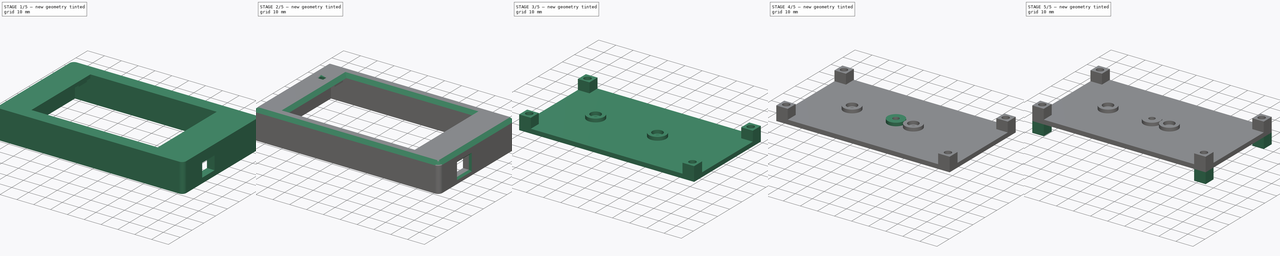
[diagram: build sequence overview — one tinted view per stage of 5, left to right]
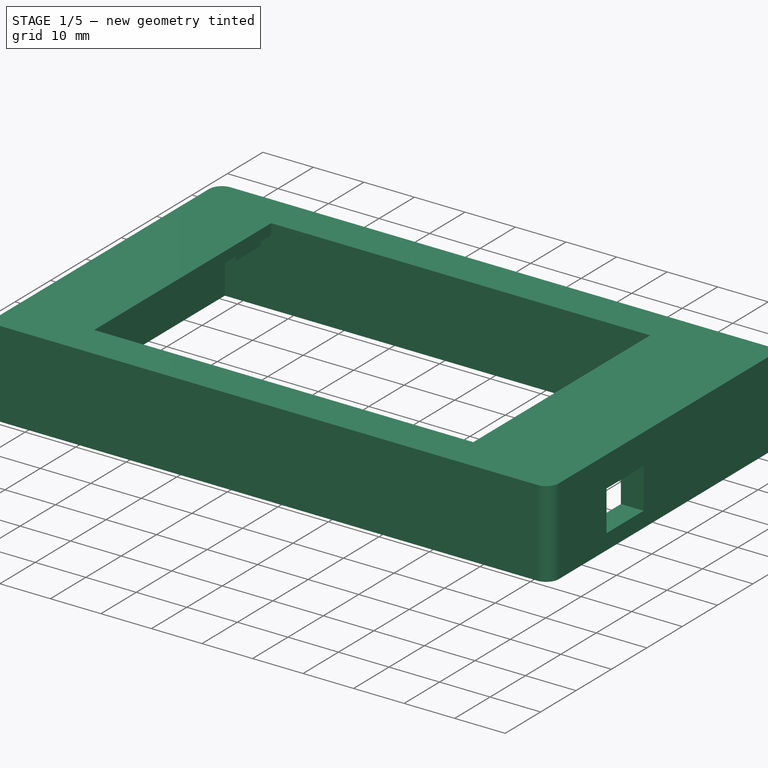
[diagram: stage 1 of 5 — iso view after this stage's code; geometry added in this stage tinted green]
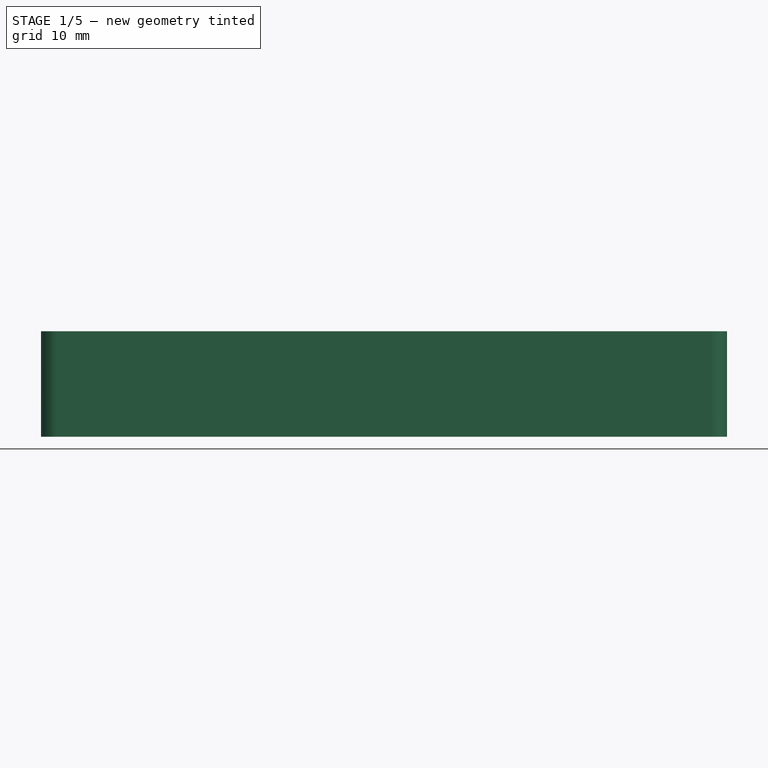
[diagram: stage 1 of 5 — front view after this stage's code; geometry added in this stage tinted green]
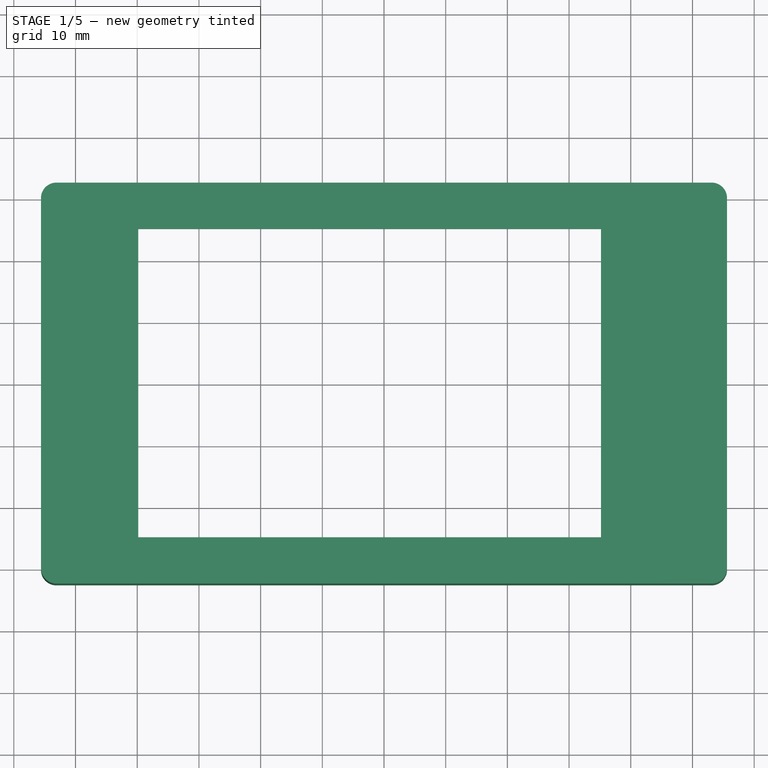
[diagram: stage 1 of 5 — top view after this stage's code; geometry added in this stage tinted green]
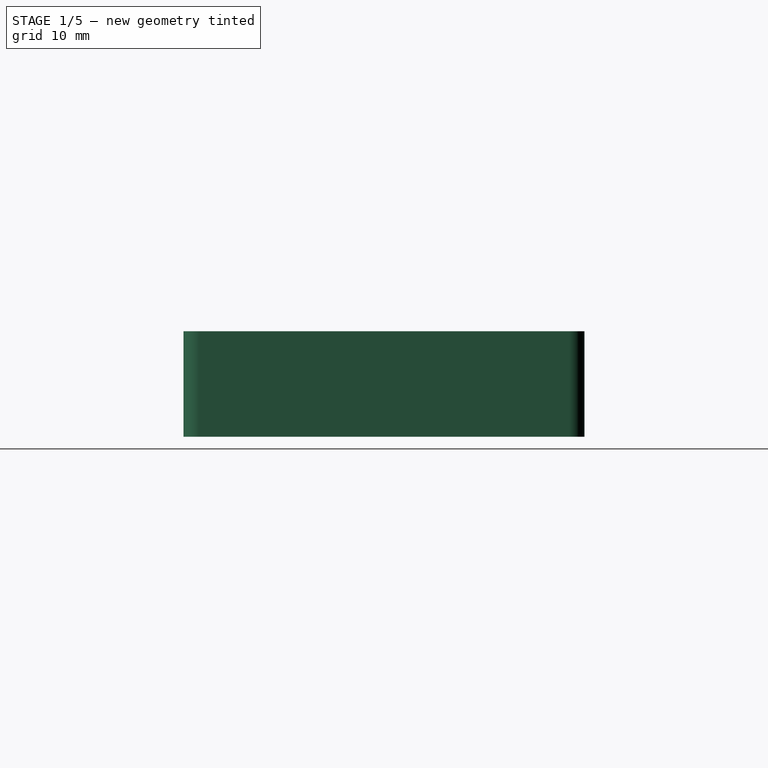
[diagram: stage 1 of 5 — right view after this stage's code; geometry added in this stage tinted green]
FCSTD DOCUMENT  (FreeCAD 0.22R36429 (Git))
Label: ender 3 v3 se cyd 3.5 inch mount
License: All rights reserved
LicenseURL: https://en.wikipedia.org/wiki/All_rights_reserved
objects: Sketcher::SketchObject×23, PartDesign::Pocket×13, PartDesign::Pad×11, PartDesign::Chamfer×4, PartDesign::Body×4, PartDesign::SubShapeBinder×3, PartDesign::Plane×2, PartDesign::ShapeBinder×1
note: 89 computed .brp shape members not serialized (recipe doc carries the construction recipe); baked Part::Feature solids carry a one-line shape summary decoded from their .brp

FEATURE [Sketcher::SketchObject] Sketch
  AttachmentSupport = -> [XY_Plane]
  FullyConstrained = true
  MapMode = 5
  sketch-geometry (13):
    g0: LineSegment StartX=-55.6 StartY=30 StartZ=0 EndX=-55.6 EndY=-30 EndZ=0
    g1: LineSegment StartX=-53.1 StartY=-32.5 StartZ=0 EndX=53.1 EndY=-32.5 EndZ=0
    g2: LineSegment StartX=55.6 StartY=-30 StartZ=0 EndX=55.6 EndY=30 EndZ=0
    g3: LineSegment StartX=53.1 StartY=32.5 StartZ=0 EndX=-53.1 EndY=32.5 EndZ=0
    g4: GeomPoint X=0 Y=0 Z=0
    g5: ArcOfCircle CenterX=-53.1 CenterY=30 CenterZ=0 NormalX=0 NormalY=0 NormalZ=1 AngleXU=0 Radius=2.5 StartAngle=1.5708 EndAngle=3.14159
    g6: GeomPoint X=-55.6 Y=32.5 Z=0
    g7: ArcOfCircle CenterX=-53.1 CenterY=-30 CenterZ=0 NormalX=0 NormalY=0 NormalZ=1 AngleXU=0 Radius=2.5 StartAngle=3.14159 EndAngle=4.71239
    g8: GeomPoint X=-55.6 Y=-32.5 Z=0
    g9: ArcOfCircle CenterX=53.1 CenterY=-30 CenterZ=0 NormalX=0 NormalY=0 NormalZ=1 AngleXU=0 Radius=2.5 StartAngle=4.71239 EndAngle=6.28319
    g10: GeomPoint X=55.6 Y=-32.5 Z=0
    g11: ArcOfCircle CenterX=53.1 CenterY=30 CenterZ=0 NormalX=0 NormalY=0 NormalZ=1 AngleXU=0 Radius=2.5 StartAngle=-9e-16 EndAngle=1.5708
    g12: GeomPoint X=55.6 Y=32.5 Z=0
  constraints (28):
    c: Vertical(g0)
    c: Vertical(g2)
    c: Horizontal(g1)
    c: Horizontal(g3)
    c: Symmetric(g10,g6,g4)
    c: Coincident(g4,g-1)
    c: DistanceY(g10,g12) = 65
    c: DistanceX(g8,g10) = 111.2
    c: PointOnObject(g6,g0)
    c: PointOnObject(g6,g3)
    c: Tangent(g0,g5) = -1.5708
    c: Tangent(g3,g5) = -1.5708
    c: PointOnObject(g8,g0)
    c: PointOnObject(g8,g1)
    c: Tangent(g0,g7) = -1.5708
    c: Tangent(g1,g7) = -1.5708
    c: PointOnObject(g10,g1)
    c: PointOnObject(g10,g2)
    c: Tangent(g1,g9) = -1.5708
    c: Tangent(g2,g9) = -1.5708
    c: PointOnObject(g12,g3)
    c: PointOnObject(g12,g2)
    c: Tangent(g3,g11) = -1.5708
    c: Tangent(g2,g11) = -1.5708
    c: Equal(g11,g5)
    c: Equal(g5,g7)
    c: Equal(g7,g9)
    c: Radius(g11) = 2.5
FEATURE [PartDesign::Pad] Pad
  Direction = (0,0,1)
  Length = 17.12
  Length2 = 10
  Profile = -> Sketch
  ReferenceAxis = -> Sketch [N_Axis]
  Suppressed = false
  Type = 0
FEATURE [PartDesign::SubShapeBinder] Binder
  BindCopyOnChange = 0
  BindMode = 0
  ClaimChildren = false
  Context = -> Body [Binder.]
  Fuse = false
  MakeFace = true
  Offset = -4.5
  OffsetFill = false
  OffsetIntersection = false
  OffsetJoinType = 0
  OffsetOpenResult = false
  PartialLoad = false
  Relative = true
  Support = -> [Pad[Face9]]
  _Version = 2
FEATURE [PartDesign::Pocket] Pocket
  BaseFeature = -> Pad
  Direction = (0,0,1)
  Length = 15
  Length2 = 5
  Profile = -> Binder
  Suppressed = false
  Type = 0
FEATURE [Sketcher::SketchObject] Sketch001
  AttachmentSupport = -> [Pocket]
  ExternalGeometry = -> [Pocket]
  FullyConstrained = true
  MapMode = 5
  Placement = pos=(0,0,15) rot=(1,0,0;3.14159rad)
  sketch-geometry (16):
    g0: LineSegment StartX=-52 StartY=29 StartZ=0 EndX=-52 EndY=21 EndZ=0
    g1: LineSegment StartX=-52 StartY=21 StartZ=0 EndX=-44 EndY=21 EndZ=0
    g2: LineSegment StartX=-44 StartY=21 StartZ=0 EndX=-44 EndY=29 EndZ=0
    g3: LineSegment StartX=-44 StartY=29 StartZ=0 EndX=-52 EndY=29 EndZ=0
    g4: LineSegment StartX=-52 StartY=-21 StartZ=0 EndX=-52 EndY=-29 EndZ=0
    g5: LineSegment StartX=-52 StartY=-29 StartZ=0 EndX=-44 EndY=-29 EndZ=0
    g6: LineSegment StartX=-44 StartY=-29 StartZ=0 EndX=-44 EndY=-21 EndZ=0
    g7: LineSegment StartX=-44 StartY=-21 StartZ=0 EndX=-52 EndY=-21 EndZ=0
    g8: LineSegment StartX=44 StartY=29 StartZ=0 EndX=44 EndY=21 EndZ=0
    g9: LineSegment StartX=44 StartY=21 StartZ=0 EndX=52 EndY=21 EndZ=0
    g10: LineSegment StartX=52 StartY=21 StartZ=0 EndX=52 EndY=29 EndZ=0
    g11: LineSegment StartX=52 StartY=29 StartZ=0 EndX=44 EndY=29 EndZ=0
    g12: LineSegment StartX=44 StartY=-21 StartZ=0 EndX=44 EndY=-29 EndZ=0
    g13: LineSegment StartX=44 StartY=-29 StartZ=0 EndX=52 EndY=-29 EndZ=0
    g14: LineSegment StartX=52 StartY=-29 StartZ=0 EndX=52 EndY=-21 EndZ=0
    g15: LineSegment StartX=52 StartY=-21 StartZ=0 EndX=44 EndY=-21 EndZ=0
  constraints (48):
    c: Coincident(g0,g1)
    c: Coincident(g1,g2)
    c: Coincident(g2,g3)
    c: Coincident(g3,g0)
    c: Vertical(g0)
    c: Vertical(g2)
    c: Horizontal(g1)
    c: Horizontal(g3)
    c: Coincident(g4,g5)
    c: Coincident(g5,g6)
    c: Coincident(g6,g7)
    c: Coincident(g7,g4)
    c: Vertical(g4)
    c: Vertical(g6)
    c: Horizontal(g5)
    c: Horizontal(g7)
    c: Coincident(g8,g9)
    c: Coincident(g9,g10)
    c: Coincident(g10,g11)
    c: Coincident(g11,g8)
    c: Vertical(g8)
    c: Vertical(g10)
    c: Horizontal(g9)
    c: Horizontal(g11)
    c: Coincident(g12,g13)
    c: Coincident(g13,g14)
    c: Coincident(g14,g15)
    c: Coincident(g15,g12)
    c: Vertical(g12)
    c: Vertical(g14)
    c: Horizontal(g13)
    c: Horizontal(g15)
    c: Equal(g15,g9)
    c: Equal(g9,g1)
    c: Equal(g1,g7)
    c: Distance(g1,g1) = 8
    c: Equal(g6,g2)
    c: Equal(g2,g12)
    c: Distance(g2,g2) = 8
    c: DistanceX(g1,g-1) = 44
    c: DistanceX(g6,g-1) = 44
    c: DistanceX(g-1,g8) = 44
    c: DistanceX(g-1,g12) = 44
    c: DistanceY(g-1,g1) = 21
    c: DistanceY(g6,g-1) = 21
    c: DistanceY(g12,g-1) = 21
    c: DistanceY(g-1,g8) = 21
    c: Distance(g8,g8) = 8
FEATURE [PartDesign::Pad] Pad001
  BaseFeature = -> Pocket
  Direction = (0,0,-1)
  Length = 4.2
  Length2 = 10
  Profile = -> Sketch001
  ReferenceAxis = -> Sketch001 [N_Axis]
  Suppressed = false
  Type = 0
FEATURE [PartDesign::Plane] DatumPlane
  AttachmentSupport = -> [Pad001]
  Length = 128.204
  MapMode = 5
  Placement = pos=(0,0,10.8) rot=(1,0,0;3.14159rad)
  ResizeMode = 0
  Width = 82.0035
FEATURE [Sketcher::SketchObject] Sketch002
  AttachmentSupport = -> [DatumPlane]
  ExternalGeometry = -> [Pad001]
  FullyConstrained = true
  MapMode = 5
  Placement = pos=(0,0,10.8) rot=(1,0,0;3.14159rad)
  sketch-geometry (4):
    g0: Circle CenterX=-47.325 CenterY=24.125 CenterZ=0 NormalX=0 NormalY=0 NormalZ=1 AngleXU=0 Radius=1.575
    g1: Circle CenterX=-47.325 CenterY=-24.125 CenterZ=0 NormalX=0 NormalY=0 NormalZ=1 AngleXU=0 Radius=1.575
    g2: Circle CenterX=47.325 CenterY=-24.125 CenterZ=0 NormalX=0 NormalY=0 NormalZ=1 AngleXU=0 Radius=1.575
    g3: Circle CenterX=47.325 CenterY=24.125 CenterZ=0 NormalX=0 NormalY=0 NormalZ=1 AngleXU=0 Radius=1.575
  constraints (11):
    c: Equal(g3,g2)
    c: Equal(g2,g1)
    c: Equal(g1,g0)
    c: Diameter(g0) = 3.15
    c: DistanceY(g1,g0) = 48.25
    c: DistanceX(g0,g3) = 94.65
    c: Vertical(g1,g0)
    c: Vertical(g2,g3)
    c: Horizontal(g0,g3)
    c: Horizontal(g1,g2)
    c: Symmetric(g0,g2,g-1)
FEATURE [PartDesign::Pocket] Pocket001
  BaseFeature = -> Pad001
  Direction = (0,0,1)
  Length = 4.5
  Length2 = 5
  Profile = -> Sketch002
  ReferenceAxis = -> Sketch002 [N_Axis]
  Suppressed = false
  Type = 0
FEATURE [PartDesign::Plane] DatumPlane001
  AttachmentSupport = -> [Pocket001]
  Length = 76.4018
  MapMode = 5
  Placement = pos=(55.6,0,0) rot=(0.57735,0.57735,0.57735;2.0944rad)
  ResizeMode = 0
  Width = 61.4018
FEATURE [Sketcher::SketchObject] Sketch003
  AttachmentSupport = -> [DatumPlane001]
  FullyConstrained = false
  MapMode = 5
  Placement = pos=(55.6,0,0) rot=(0.57735,0.57735,0.57735;2.0944rad)
  sketch-geometry (4):
    g0: LineSegment StartX=-16.525 StartY=11.06 StartZ=0 EndX=-16.525 EndY=3.06 EndZ=0
    g1: LineSegment StartX=-16.525 StartY=3.06 StartZ=0 EndX=-6.025 EndY=3.06 EndZ=0
    g2: LineSegment StartX=-6.025 StartY=3.06 StartZ=0 EndX=-6.025 EndY=11.06 EndZ=0
    g3: LineSegment StartX=-6.025 StartY=11.06 StartZ=0 EndX=-16.525 EndY=11.06 EndZ=0
  constraints (10):
    c: Coincident(g0,g1)
    c: Coincident(g1,g2)
    c: Coincident(g2,g3)
    c: Coincident(g3,g0)
    c: Vertical(g0)
    c: Vertical(g2)
    c: Horizontal(g1)
    c: Horizontal(g3)
    c: DistanceX(g1,g1) = 10.5
    c: DistanceY(g2,g2) = 8
FEATURE [PartDesign::Pocket] Pocket002
  BaseFeature = -> Pocket001
  Direction = (-1,0,0)
  Length = 5
  Length2 = 5
  Profile = -> Sketch003
  ReferenceAxis = -> Sketch003 [N_Axis]
  Suppressed = false
  Type = 0
FEATURE [Sketcher::SketchObject] Sketch004
  AttachmentSupport = -> [Pocket002]
  FullyConstrained = true
  MapMode = 5
  Placement = pos=(0,0,17.12) rot=(0,0,1;0rad)
  sketch-geometry (4):
    g0: LineSegment StartX=-39.83 StartY=25 StartZ=0 EndX=-39.83 EndY=-25 EndZ=0
    g1: LineSegment StartX=-39.83 StartY=-25 StartZ=0 EndX=35.17 EndY=-25 EndZ=0
    g2: LineSegment StartX=35.17 StartY=-25 StartZ=0 EndX=35.17 EndY=25 EndZ=0
    g3: LineSegment StartX=35.17 StartY=25 StartZ=0 EndX=-39.83 EndY=25 EndZ=0
  constraints (12):
    c: Coincident(g0,g1)
    c: Coincident(g1,g2)
    c: Coincident(g2,g3)
    c: Coincident(g3,g0)
    c: Vertical(g0)
    c: Vertical(g2)
    c: Horizontal(g1)
    c: Horizontal(g3)
    c: DistanceX(g1,g1) = 75
    c: DistanceY(g0,g0) = 50
    c: DistanceY(g-1,g0) = 25
    c: DistanceX(g-1,g2) = 35.17
FEATURE [PartDesign::Pocket] Pocket003
  BaseFeature = -> Pocket002
  Direction = (0,0,-1)
  Length = 5
  Length2 = 5
  Profile = -> Sketch004
  ReferenceAxis = -> Sketch004 [N_Axis]
  Suppressed = false
  Type = 0
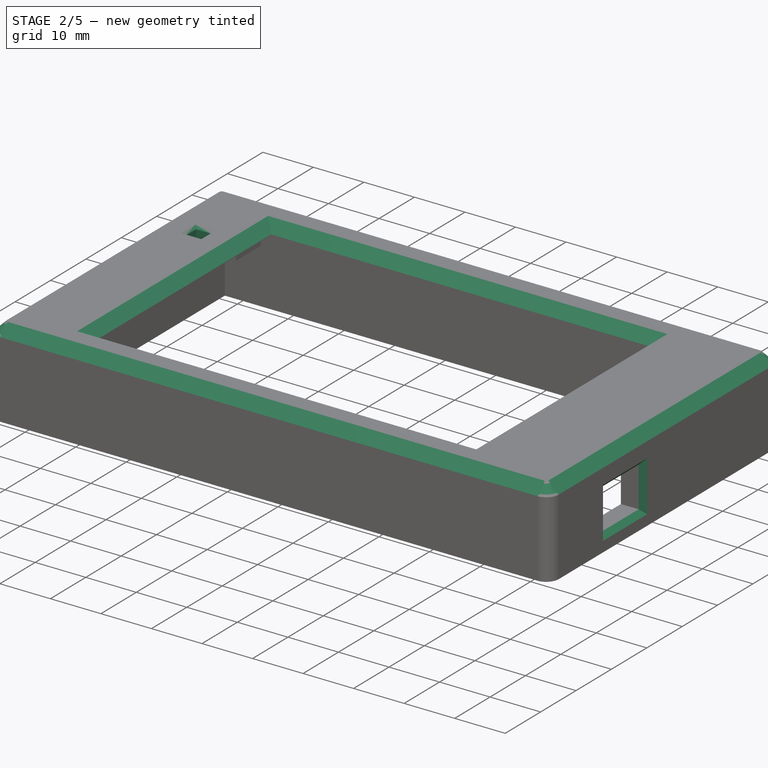
[diagram: stage 2 of 5 — iso view after this stage's code; geometry added in this stage tinted green]
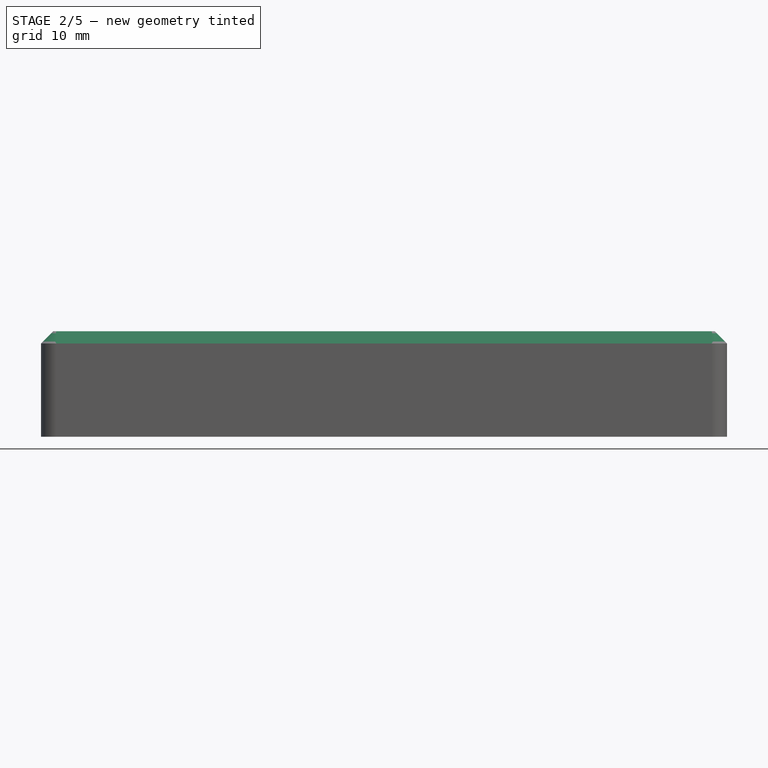
[diagram: stage 2 of 5 — front view after this stage's code; geometry added in this stage tinted green]
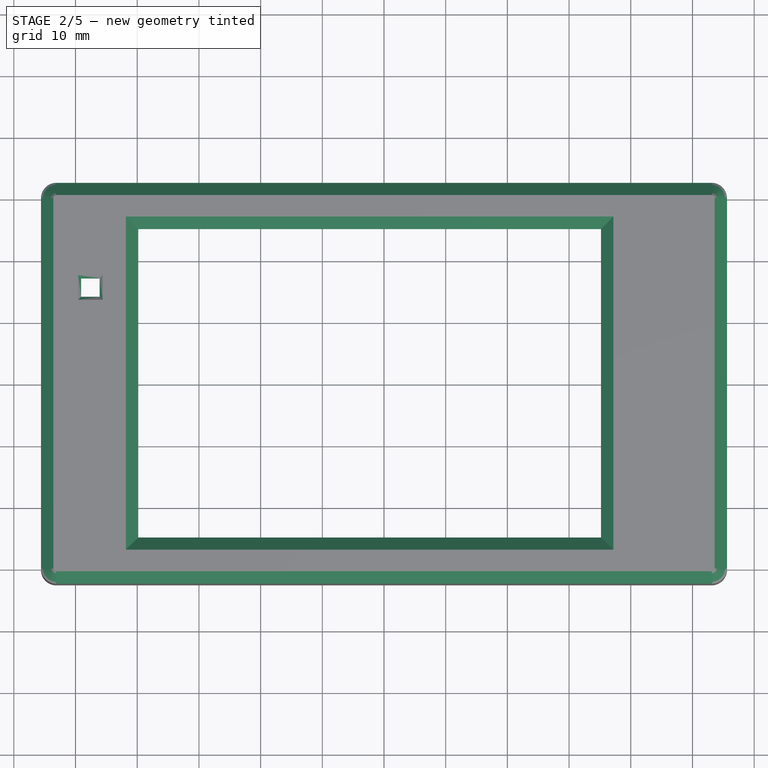
[diagram: stage 2 of 5 — top view after this stage's code; geometry added in this stage tinted green]
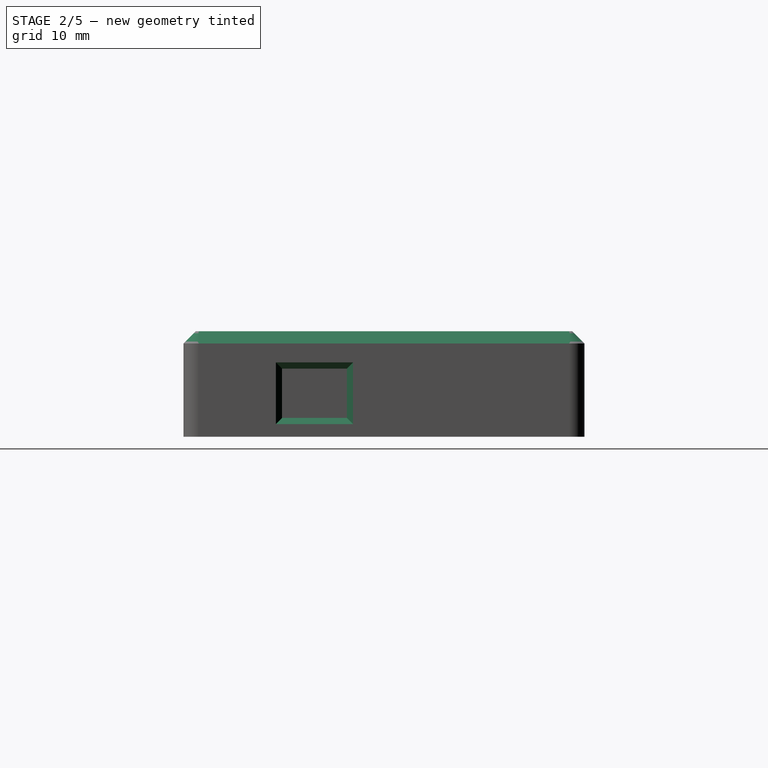
[diagram: stage 2 of 5 — right view after this stage's code; geometry added in this stage tinted green]
FEATURE [PartDesign::Chamfer] Chamfer
  Angle = 45
  Base = -> Pocket003 [Edge25,Edge28,Edge27,Edge26]
  BaseFeature = -> Pocket003
  ChamferType = 0
  FlipDirection = false
  Size = 2
  Size2 = 1
  SupportTransform = false
  Suppressed = false
  UseAllEdges = false
FEATURE [PartDesign::Chamfer] Chamfer001
  Angle = 45
  Base = -> Chamfer [Edge40,Edge39,Edge38,Edge37]
  BaseFeature = -> Chamfer
  ChamferType = 0
  FlipDirection = false
  Size = 1
  Size2 = 1
  SupportTransform = false
  Suppressed = false
  UseAllEdges = false
FEATURE [PartDesign::Chamfer] Chamfer002
  Angle = 45
  Base = -> Chamfer001 [Edge37]
  BaseFeature = -> Chamfer001
  ChamferType = 0
  FlipDirection = false
  Size = 2
  Size2 = 1
  SupportTransform = false
  Suppressed = false
  UseAllEdges = false
FEATURE [PartDesign::Body] Body002  label="peg"
  Group = -> [Sketch011,Pad005,Sketch012,Pad006,Sketch013,Pad007,Sketch014,Pocket013,Sketch027,Pocket016]
  Origin = -> Origin002
  Placement = pos=(0,0,0) rot=(1,0,0;3.14159rad)
  Tip = -> Pocket016
FEATURE [Sketcher::SketchObject] Sketch028
  AttachmentSupport = -> [Chamfer002]
  ExternalGeometry = -> [Chamfer002]
  FullyConstrained = true
  MapMode = 5
  Placement = pos=(0,0,15) rot=(1,0,0;3.14159rad)
  sketch-geometry (4):
    g0: LineSegment StartX=-49.1 StartY=-14 StartZ=0 EndX=-49.1 EndY=-17 EndZ=0
    g1: LineSegment StartX=-49.1 StartY=-17 StartZ=0 EndX=-46.1 EndY=-17 EndZ=0
    g2: LineSegment StartX=-46.1 StartY=-17 StartZ=0 EndX=-46.1 EndY=-14 EndZ=0
    g3: LineSegment StartX=-46.1 StartY=-14 StartZ=0 EndX=-49.1 EndY=-14 EndZ=0
  constraints (12):
    c: Coincident(g0,g1)
    c: Coincident(g1,g2)
    c: Coincident(g2,g3)
    c: Coincident(g3,g0)
    c: Vertical(g0)
    c: Vertical(g2)
    c: Horizontal(g1)
    c: Horizontal(g3)
    c: DistanceY(g-3,g1) = 11
    c: DistanceY(g2,g2) = 3
    c: DistanceX(g-4,g0) = 2
    c: Equal(g1,g2)
FEATURE [PartDesign::Pocket] Pocket017
  BaseFeature = -> Chamfer002
  Direction = (0,0,1)
  Length = 5
  Length2 = 5
  Profile = -> Sketch028
  ReferenceAxis = -> Sketch028 [N_Axis]
  Suppressed = false
  Type = 0
FEATURE [PartDesign::Chamfer] Chamfer003
  Angle = 45
  Base = -> Pocket017 [Edge47,Edge48,Edge45,Edge46]
  BaseFeature = -> Pocket017
  ChamferType = 0
  FlipDirection = false
  Size = 0.5
  Size2 = 1
  SupportTransform = false
  Suppressed = false
  UseAllEdges = false
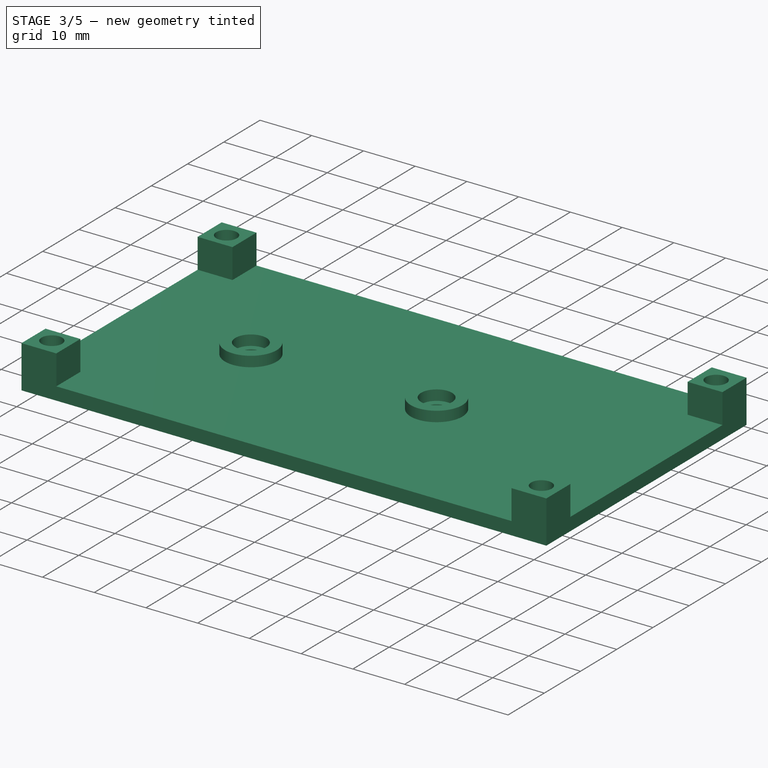
[diagram: stage 3 of 5 — iso view after this stage's code; geometry added in this stage tinted green]
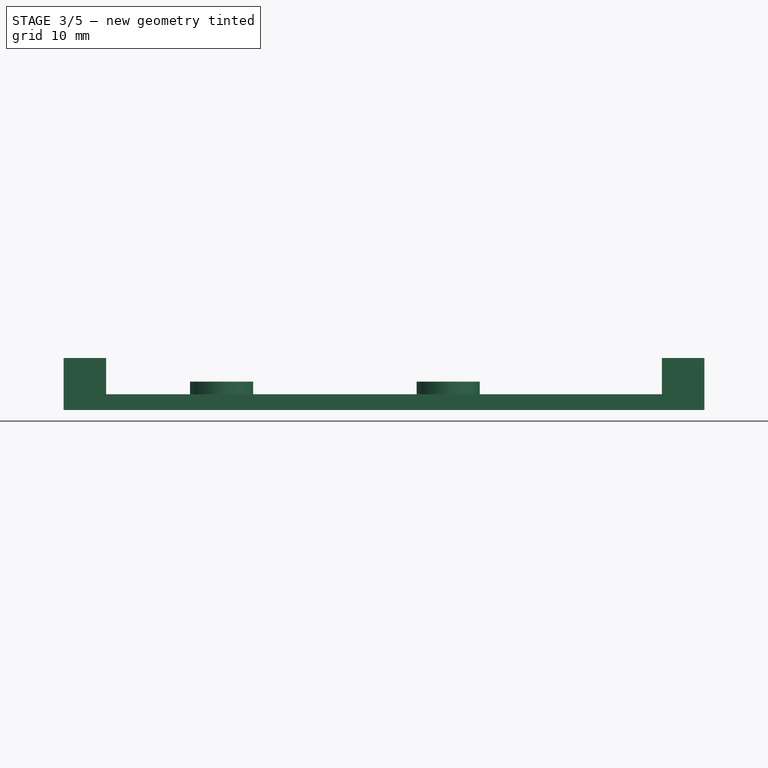
[diagram: stage 3 of 5 — front view after this stage's code; geometry added in this stage tinted green]
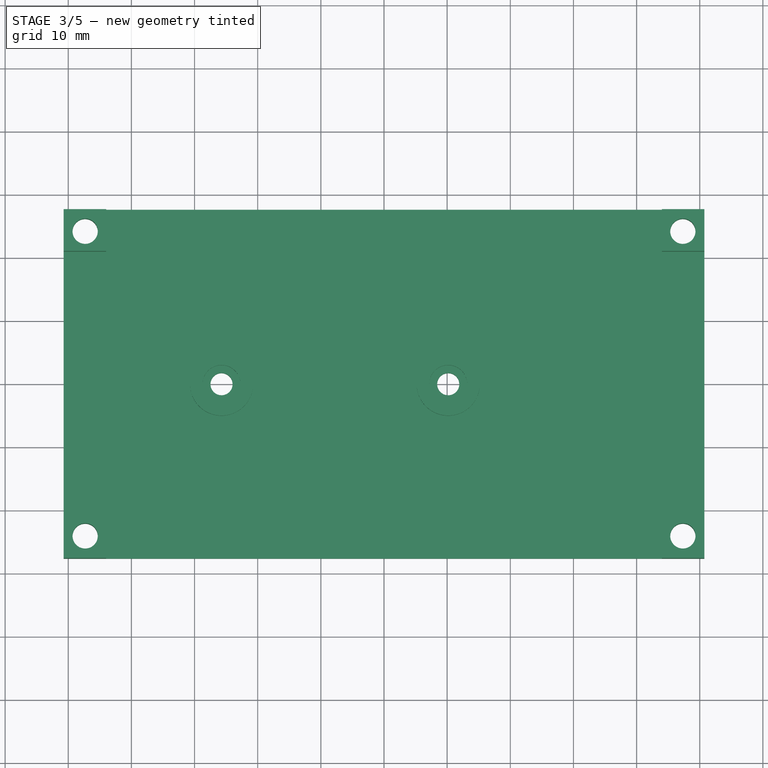
[diagram: stage 3 of 5 — top view after this stage's code; geometry added in this stage tinted green]
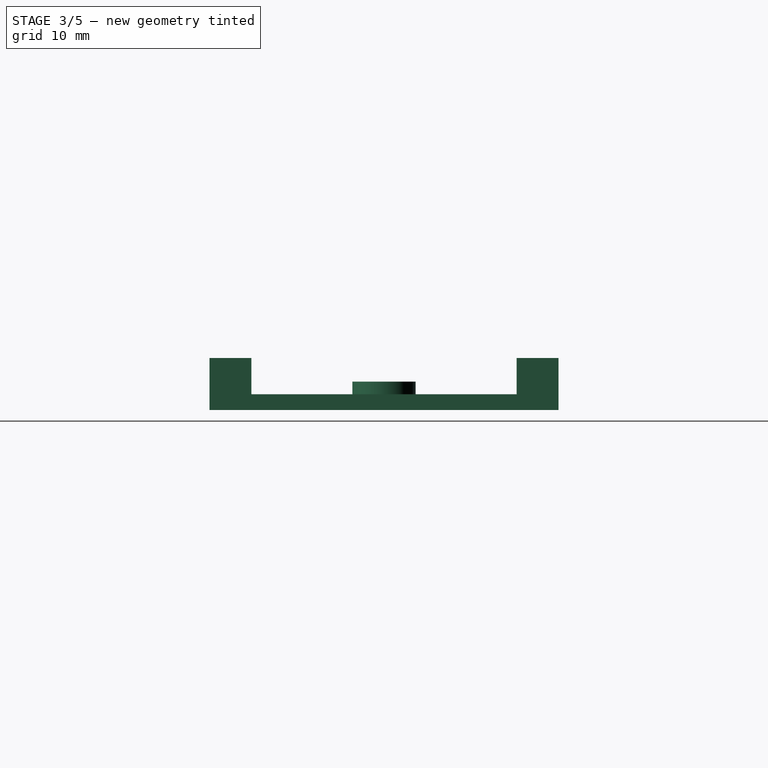
[diagram: stage 3 of 5 — right view after this stage's code; geometry added in this stage tinted green]
FEATURE [PartDesign::Body] Body  label="top"
  Group = -> [Sketch,Pad,Binder,Pocket,Sketch001,Pad001,DatumPlane,Sketch002,Pocket001,DatumPlane001,Sketch003,Pocket002,Sketch004,Pocket003,Chamfer,Chamfer001,Chamfer002,Sketch028,Pocket017,Chamfer003]
  Origin = -> Origin
  Placement = pos=(0,0,0) rot=(0,1,0;3.14159rad)
  Tip = -> Chamfer003
FEATURE [PartDesign::SubShapeBinder] Binder001
  BindCopyOnChange = 0
  BindMode = 0
  ClaimChildren = false
  Context = -> Body003 [Binder001.]
  Fuse = false
  MakeFace = true
  Offset = -0.37
  OffsetFill = false
  OffsetIntersection = false
  OffsetJoinType = 0
  OffsetOpenResult = false
  PartialLoad = false
  Relative = true
  Support = -> [Body[Chamfer003.Edge100,Chamfer003.Edge99,Chamfer003.Edge98,Chamfer003.Edge97]]
  _Version = 2
FEATURE [PartDesign::SubShapeBinder] Binder002
  BindCopyOnChange = 0
  BindMode = 0
  ClaimChildren = false
  Context = -> Body003 [Binder002.]
  Fuse = false
  MakeFace = true
  OffsetFill = false
  OffsetIntersection = false
  OffsetJoinType = 0
  OffsetOpenResult = false
  PartialLoad = false
  Relative = true
  Support = -> [Body[Chamfer003.Edge128,Chamfer003.Edge124,Chamfer003.Edge110,Chamfer003.Edge112,Chamfer003.Edge125,Chamfer003.Edge129,Chamfer003.Edge144,Chamfer003.Vertex92]]
  _Version = 2
FEATURE [Sketcher::SketchObject] Sketch029
  AttachmentSupport = -> [XY_Plane003]
  ExternalGeometry = -> [Binder001]
  FullyConstrained = true
  MapMode = 5
  sketch-geometry (4):
    g0: LineSegment StartX=-50.73 StartY=27.63 StartZ=0 EndX=-50.73 EndY=-27.63 EndZ=0
    g1: LineSegment StartX=-50.73 StartY=-27.63 StartZ=0 EndX=50.73 EndY=-27.63 EndZ=0
    g2: LineSegment StartX=50.73 StartY=-27.63 StartZ=0 EndX=50.73 EndY=27.63 EndZ=0
    g3: LineSegment StartX=50.73 StartY=27.63 StartZ=0 EndX=-50.73 EndY=27.63 EndZ=0
  constraints (10):
    c: Coincident(g0,g1)
    c: Coincident(g1,g2)
    c: Coincident(g2,g3)
    c: Coincident(g3,g0)
    c: Vertical(g0)
    c: Vertical(g2)
    c: Horizontal(g1)
    c: Horizontal(g3)
    c: Coincident(g0,g-6)
    c: Coincident(g1,g-5)
FEATURE [PartDesign::Pad] Pad008
  Direction = (0,0,1)
  Length = 2.5
  Length2 = 10
  Profile = -> Sketch029
  ReferenceAxis = -> Sketch029 [N_Axis]
  Suppressed = false
  Type = 0
FEATURE [Sketcher::SketchObject] Sketch030
  AttachmentSupport = -> [Pad008]
  ExternalGeometry = -> [Pad008,Binder002]
  FullyConstrained = true
  MapMode = 5
  Placement = pos=(0,0,2.5) rot=(0,0,1;0rad)
  sketch-geometry (16):
    g0: LineSegment StartX=-50.73 StartY=-27.63 StartZ=0 EndX=-44 EndY=-27.63 EndZ=0
    g1: LineSegment StartX=-44 StartY=-27.63 StartZ=0 EndX=-44 EndY=-21 EndZ=0
    g2: LineSegment StartX=-44 StartY=-21 StartZ=0 EndX=-50.73 EndY=-21 EndZ=0
    g3: LineSegment StartX=-50.73 StartY=-21 StartZ=0 EndX=-50.73 EndY=-27.63 EndZ=0
    g4: LineSegment StartX=-50.73 StartY=27.63 StartZ=0 EndX=-50.73 EndY=21 EndZ=0
    g5: LineSegment StartX=-50.73 StartY=21 StartZ=0 EndX=-44 EndY=21 EndZ=0
    g6: LineSegment StartX=-44 StartY=21 StartZ=0 EndX=-44 EndY=27.63 EndZ=0
    g7: LineSegment StartX=-44 StartY=27.63 StartZ=0 EndX=-50.73 EndY=27.63 EndZ=0
    g8: LineSegment StartX=50.73 StartY=27.63 StartZ=0 EndX=44 EndY=27.63 EndZ=0
    g9: LineSegment StartX=44 StartY=27.63 StartZ=0 EndX=44 EndY=21 EndZ=0
    g10: LineSegment StartX=44 StartY=21 StartZ=0 EndX=50.73 EndY=21 EndZ=0
    g11: LineSegment StartX=50.73 StartY=21 StartZ=0 EndX=50.73 EndY=27.63 EndZ=0
    g12: LineSegment StartX=50.73 StartY=-27.63 StartZ=0 EndX=50.73 EndY=-21 EndZ=0
    g13: LineSegment StartX=50.73 StartY=-21 StartZ=0 EndX=44 EndY=-21 EndZ=0
    g14: LineSegment StartX=44 StartY=-21 StartZ=0 EndX=44 EndY=-27.63 EndZ=0
    g15: LineSegment StartX=44 StartY=-27.63 StartZ=0 EndX=50.73 EndY=-27.63 EndZ=0
  constraints (40):
    c: Coincident(g0,g1)
    c: Coincident(g1,g2)
    c: Coincident(g2,g3)
    c: Coincident(g3,g0)
    c: Horizontal(g0)
    c: Horizontal(g2)
    c: Vertical(g1)
    c: Vertical(g3)
    c: Coincident(g0,g-6)
    c: Coincident(g1,g-14)
    c: Coincident(g4,g5)
    c: Coincident(g5,g6)
    c: Coincident(g6,g7)
    c: Coincident(g7,g4)
    c: Vertical(g4)
    c: Vertical(g6)
    c: Horizontal(g5)
    c: Horizontal(g7)
    c: Coincident(g4,g-4)
    c: Coincident(g5,g-12)
    c: Coincident(g8,g9)
    c: Coincident(g9,g10)
    c: Coincident(g10,g11)
    c: Coincident(g11,g8)
    c: Horizontal(g8)
    c: Horizontal(g10)
    c: Vertical(g9)
    c: Vertical(g11)
    c: Coincident(g8,g-5)
    c: Coincident(g9,g-10)
    c: Coincident(g12,g13)
    c: Coincident(g13,g14)
    c: Coincident(g14,g15)
    c: Coincident(g15,g12)
    c: Vertical(g12)
    c: Vertical(g14)
    c: Horizontal(g13)
    c: Horizontal(g15)
    c: Coincident(g12,g-6)
    c: Coincident(g13,g-8)
FEATURE [PartDesign::Pad] Pad009
  BaseFeature = -> Pad008
  Direction = (0,0,1)
  Length = 5.75
  Length2 = 10
  Profile = -> Sketch030
  ReferenceAxis = -> Sketch030 [N_Axis]
  Suppressed = false
  Type = 0
FEATURE [Sketcher::SketchObject] Sketch031
  ExternalGeometry = -> [Binder002]
  FullyConstrained = true
  MapMode = 5
  Placement = pos=(0,0,8.25) rot=(0,0,1;0rad)
  sketch-geometry (4):
    g0: Circle CenterX=-47.325 CenterY=24.125 CenterZ=0 NormalX=0 NormalY=0 NormalZ=1 AngleXU=0 Radius=2
    g1: Circle CenterX=-47.325 CenterY=-24.125 CenterZ=0 NormalX=0 NormalY=0 NormalZ=1 AngleXU=0 Radius=2
    g2: Circle CenterX=47.325 CenterY=-24.125 CenterZ=0 NormalX=0 NormalY=0 NormalZ=1 AngleXU=0 Radius=2
    g3: Circle CenterX=47.325 CenterY=24.125 CenterZ=0 NormalX=0 NormalY=0 NormalZ=1 AngleXU=0 Radius=2
  constraints (8):
    c: Coincident(g0,g-3)
    c: Coincident(g1,g-4)
    c: Coincident(g2,g-5)
    c: Coincident(g3,g-6)
    c: Equal(g3,g2)
    c: Equal(g2,g1)
    c: Equal(g1,g0)
    c: Diameter(g0) = 4
FEATURE [PartDesign::Pocket] Pocket018
  BaseFeature = -> Pad009
  Direction = (0,0,-1)
  Length = 5
  Length2 = 5
  Profile = -> Sketch031
  ReferenceAxis = -> Sketch031 [N_Axis]
  Suppressed = false
  Type = 1
FEATURE [Sketcher::SketchObject] Sketch032
  AttachmentSupport = -> [Pocket018]
  ExternalGeometry = -> [Pocket018]
  FullyConstrained = true
  MapMode = 5
  Placement = pos=(0,0,2.5) rot=(0,0,1;0rad)
  sketch-geometry (4):
    g0: Circle CenterX=-25.73 CenterY=0 CenterZ=0 NormalX=0 NormalY=0 NormalZ=1 AngleXU=0 Radius=5
    g1: Circle CenterX=10.17 CenterY=0 CenterZ=0 NormalX=0 NormalY=0 NormalZ=1 AngleXU=0 Radius=5
    g2: Circle CenterX=-25.73 CenterY=0 CenterZ=0 NormalX=0 NormalY=0 NormalZ=1 AngleXU=0 Radius=3
    g3: Circle CenterX=10.17 CenterY=0 CenterZ=0 NormalX=0 NormalY=0 NormalZ=1 AngleXU=0 Radius=3
  constraints (10):
    c: PointOnObject(g0,g-1)
    c: PointOnObject(g1,g-1)
    c: Equal(g1,g0)
    c: Diameter(g0) = 10
    c: DistanceX(g-3,g0) = 25
    c: DistanceX(g0,g1) = 35.9
    c: Coincident(g2,g0)
    c: Coincident(g3,g1)
    c: Equal(g3,g2)
    c: Diameter(g2) = 6
FEATURE [PartDesign::Pad] Pad010
  BaseFeature = -> Pocket018
  Direction = (0,0,1)
  Length = 2
  Length2 = 10
  Profile = -> Sketch032
  ReferenceAxis = -> Sketch032 [N_Axis]
  Suppressed = false
  Type = 0
FEATURE [Sketcher::SketchObject] Sketch033
  AttachmentSupport = -> [Pad010]
  ExternalGeometry = -> [Pad010]
  FullyConstrained = true
  MapMode = 5
  Placement = pos=(0,0,2.5) rot=(0,0,1;0rad)
  sketch-geometry (2):
    g0: Circle CenterX=-25.73 CenterY=0 CenterZ=0 NormalX=0 NormalY=0 NormalZ=1 AngleXU=0 Radius=1.75
    g1: Circle CenterX=10.17 CenterY=0 CenterZ=0 NormalX=0 NormalY=0 NormalZ=1 AngleXU=0 Radius=1.75
  constraints (4):
    c: Coincident(g0,g-4)
    c: Coincident(g1,g-3)
    c: Equal(g1,g0)
    c: Diameter(g0) = 3.5
FEATURE [PartDesign::Pocket] Pocket019
  BaseFeature = -> Pad010
  Direction = (0,0,-1)
  Length = 5
  Length2 = 5
  Profile = -> Sketch033
  ReferenceAxis = -> Sketch033 [N_Axis]
  Suppressed = false
  Type = 1
FEATURE [Sketcher::SketchObject] Sketch034
  AttachmentSupport = -> [Pocket019]
  ExternalGeometry = -> [Pocket019]
  FullyConstrained = true
  MapMode = 5
  Placement = pos=(0,0,0) rot=(1,0,0;3.14159rad)
  sketch-geometry (4):
    g0: Circle CenterX=-47.325 CenterY=24.125 CenterZ=0 NormalX=0 NormalY=0 NormalZ=1 AngleXU=0 Radius=3
    g1: Circle CenterX=-47.325 CenterY=-24.125 CenterZ=0 NormalX=0 NormalY=0 NormalZ=1 AngleXU=0 Radius=3
    g2: Circle CenterX=47.325 CenterY=-24.125 CenterZ=0 NormalX=0 NormalY=0 NormalZ=1 AngleXU=0 Radius=3
    g3: Circle CenterX=47.325 CenterY=24.125 CenterZ=0 NormalX=0 NormalY=0 NormalZ=1 AngleXU=0 Radius=3
  constraints (8):
    c: Coincident(g0,g-3)
    c: Coincident(g1,g-4)
    c: Coincident(g2,g-5)
    c: Coincident(g3,g-6)
    c: Equal(g2,g3)
    c: Equal(g3,g1)
    c: Equal(g1,g0)
    c: Diameter(g0) = 6
FEATURE [PartDesign::Pocket] Pocket020
  BaseFeature = -> Pocket019
  Direction = (0,0,1)
  Length = 2
  Length2 = 5
  Profile = -> Sketch034
  ReferenceAxis = -> Sketch034 [N_Axis]
  Suppressed = false
  Type = 0
FEATURE [PartDesign::Body] Body003  label="base-vertical"
  Group = -> [Binder001,Binder002,Sketch029,Pad008,Sketch030,Pad009,Sketch031,Pocket018,Sketch032,Pad010,Sketch033,Pocket019,Sketch034,Pocket020]
  Origin = -> Origin003
  Tip = -> Pocket020
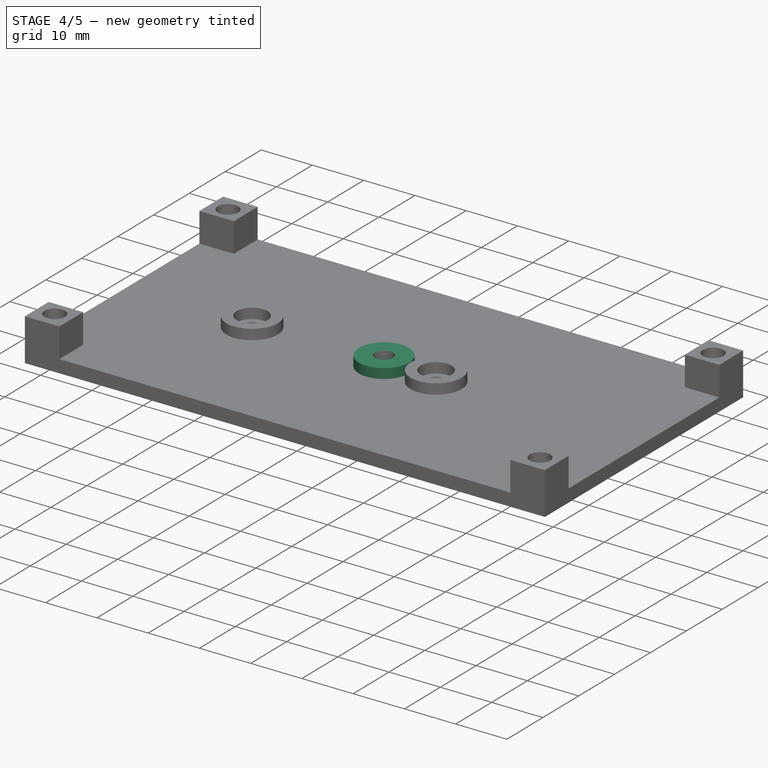
[diagram: stage 4 of 5 — iso view after this stage's code; geometry added in this stage tinted green]
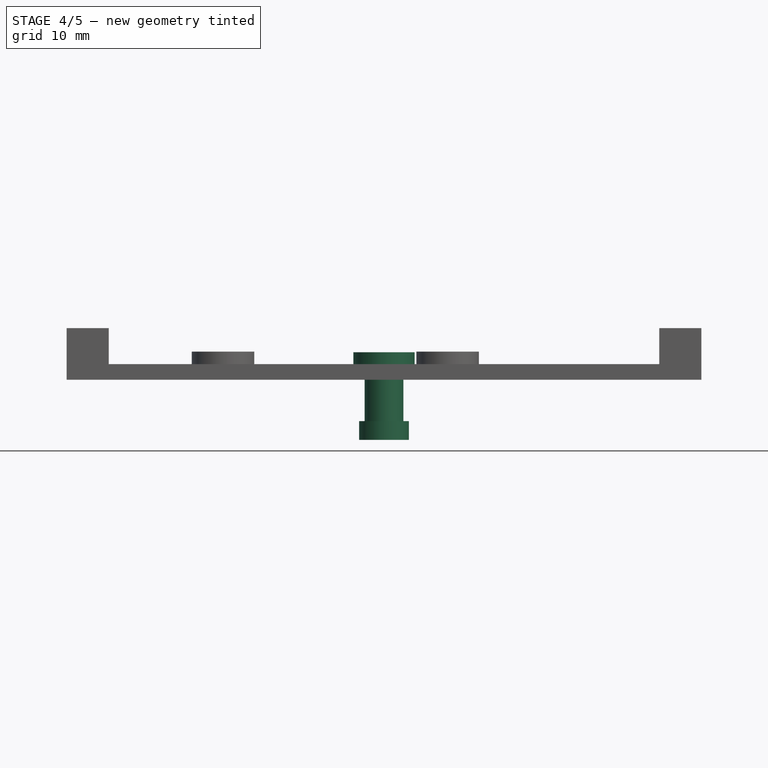
[diagram: stage 4 of 5 — front view after this stage's code; geometry added in this stage tinted green]
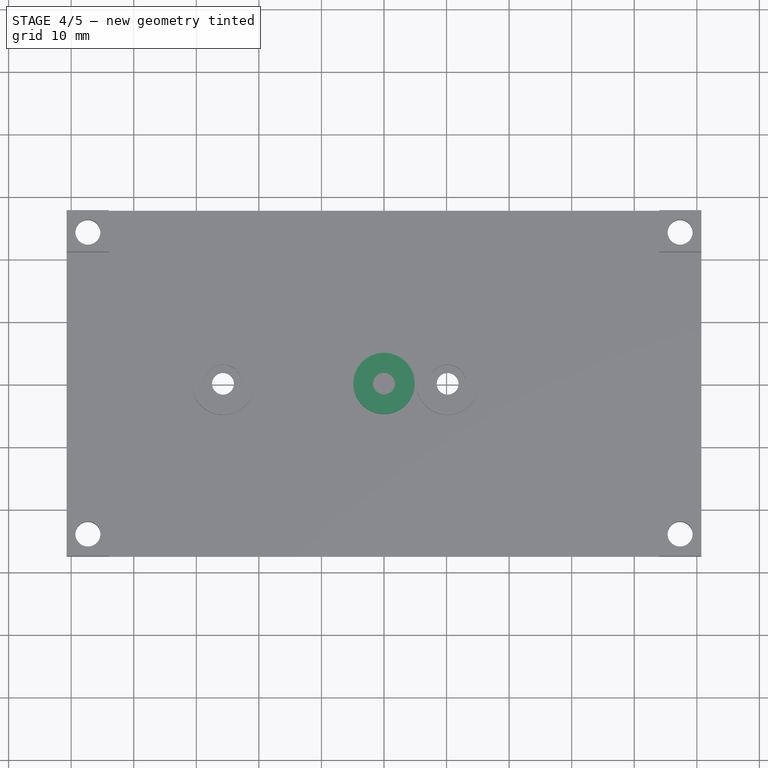
[diagram: stage 4 of 5 — top view after this stage's code; geometry added in this stage tinted green]
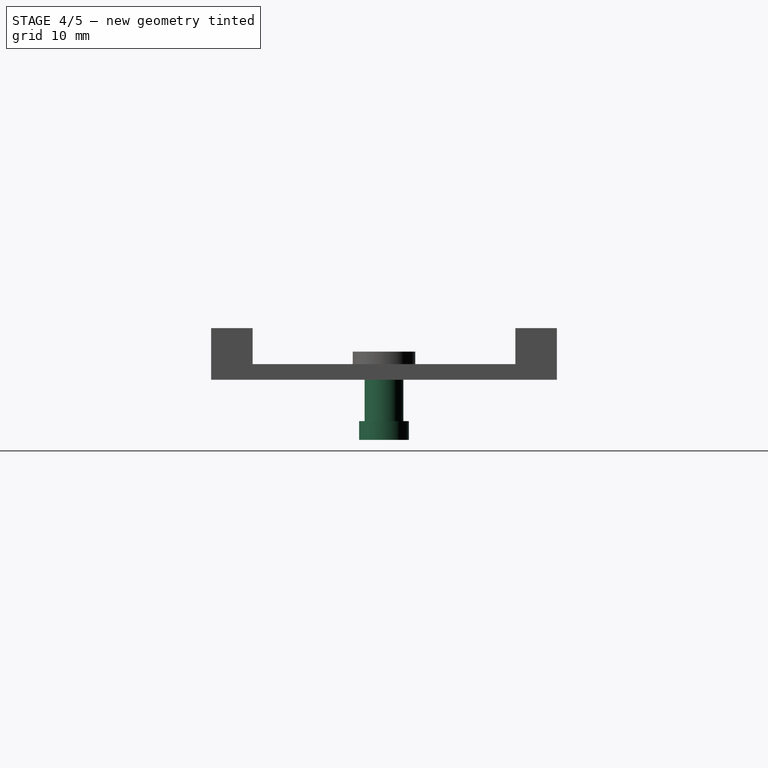
[diagram: stage 4 of 5 — right view after this stage's code; geometry added in this stage tinted green]
FEATURE [PartDesign::Body] Body001  label="base"
  Group = -> [ShapeBinder,Sketch005,Pad002,Sketch006,Pad003,Sketch007,Pocket004,Sketch008,Pad004,Sketch009,Pocket005,Sketch010,Pocket006]
  Origin = -> Origin001
  Placement = pos=(0,0,0) rot=(1,0,0;3.14159rad)
  Tip = -> Pocket006
FEATURE [Sketcher::SketchObject] Sketch011
  AttachmentSupport = -> [XY_Plane002]
  FullyConstrained = true
  MapMode = 5
  sketch-geometry (1):
    g0: Circle CenterX=0 CenterY=0 CenterZ=0 NormalX=0 NormalY=0 NormalZ=1 AngleXU=0 Radius=4.9
  constraints (2):
    c: Coincident(g0,g-1)
    c: Diameter(g0) = 9.8
FEATURE [PartDesign::Pad] Pad005
  Direction = (0,0,1)
  Length = 4.4
  Length2 = 10
  Profile = -> Sketch011
  ReferenceAxis = -> Sketch011 [N_Axis]
  Suppressed = false
  Type = 0
FEATURE [Sketcher::SketchObject] Sketch012
  AttachmentSupport = -> [Pad005]
  FullyConstrained = true
  MapMode = 5
  Placement = pos=(0,0,0) rot=(1,0,0;3.14159rad)
  sketch-geometry (1):
    g0: Circle CenterX=0 CenterY=0 CenterZ=0 NormalX=0 NormalY=0 NormalZ=1 AngleXU=0 Radius=3.1
  constraints (2):
    c: Coincident(g0,g-1)
    c: Diameter(g0) = 6.2
FEATURE [PartDesign::Pad] Pad006
  BaseFeature = -> Pad005
  Direction = (0,0,-1)
  Length = 6.6
  Length2 = 10
  Profile = -> Sketch012
  ReferenceAxis = -> Sketch012 [N_Axis]
  Suppressed = false
  Type = 0
FEATURE [Sketcher::SketchObject] Sketch013
  AttachmentSupport = -> [Pad006]
  FullyConstrained = true
  MapMode = 5
  Placement = pos=(0,0,-6.6) rot=(1,0,0;3.14159rad)
  sketch-geometry (1):
    g0: Circle CenterX=0 CenterY=0 CenterZ=0 NormalX=0 NormalY=0 NormalZ=1 AngleXU=0 Radius=3.975
  constraints (2):
    c: Coincident(g0,g-1)
    c: Diameter(g0) = 7.95
FEATURE [PartDesign::Pad] Pad007
  BaseFeature = -> Pad006
  Direction = (0,0,-1)
  Length = 3
  Length2 = 10
  Profile = -> Sketch013
  ReferenceAxis = -> Sketch013 [N_Axis]
  Suppressed = false
  Type = 0
FEATURE [Sketcher::SketchObject] Sketch014
  AttachmentSupport = -> [Pad007]
  FullyConstrained = true
  MapMode = 5
  Placement = pos=(0,0,4.4) rot=(0,0,1;0rad)
  sketch-geometry (1):
    g0: Circle CenterX=0 CenterY=0 CenterZ=0 NormalX=0 NormalY=0 NormalZ=1 AngleXU=0 Radius=1.45
  constraints (2):
    c: Coincident(g0,g-1)
    c: Diameter(g0) = 2.9
FEATURE [PartDesign::Pocket] Pocket013
  BaseFeature = -> Pad007
  Direction = (0,0,-1)
  Length = 12
  Length2 = 5
  Profile = -> Sketch014
  ReferenceAxis = -> Sketch014 [N_Axis]
  Suppressed = false
  Type = 0
FEATURE [Sketcher::SketchObject] Sketch027
  AttachmentSupport = -> [Pocket013]
  FullyConstrained = true
  MapMode = 5
  Placement = pos=(0,0,4.4) rot=(0,0,1;0rad)
  sketch-geometry (1):
    g0: Circle CenterX=0 CenterY=0 CenterZ=0 NormalX=0 NormalY=0 NormalZ=1 AngleXU=0 Radius=1.75
  constraints (2):
    c: Coincident(g0,g-1)
    c: Diameter(g0) = 3.5
FEATURE [PartDesign::Pocket] Pocket016
  BaseFeature = -> Pocket013
  Direction = (0,0,-1)
  Length = 5
  Length2 = 5
  Profile = -> Sketch027
  ReferenceAxis = -> Sketch027 [N_Axis]
  Suppressed = false
  Type = 0
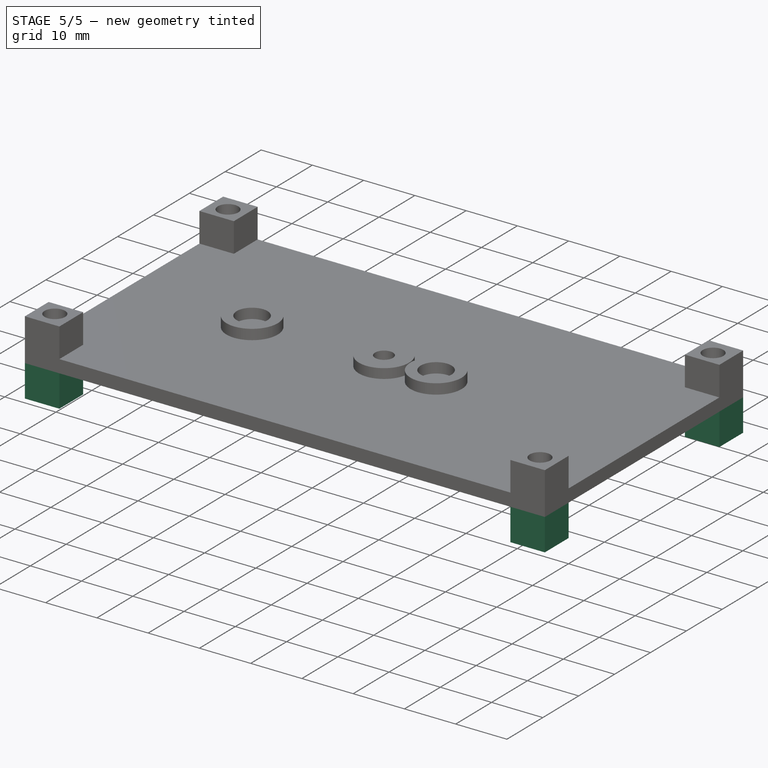
[diagram: stage 5 of 5 — iso view after this stage's code; geometry added in this stage tinted green]
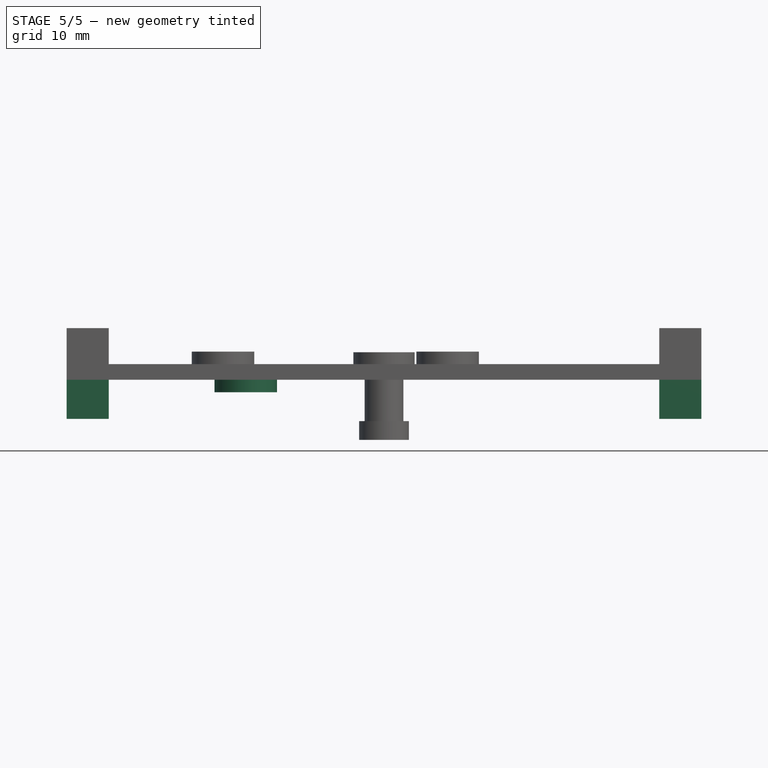
[diagram: stage 5 of 5 — front view after this stage's code; geometry added in this stage tinted green]
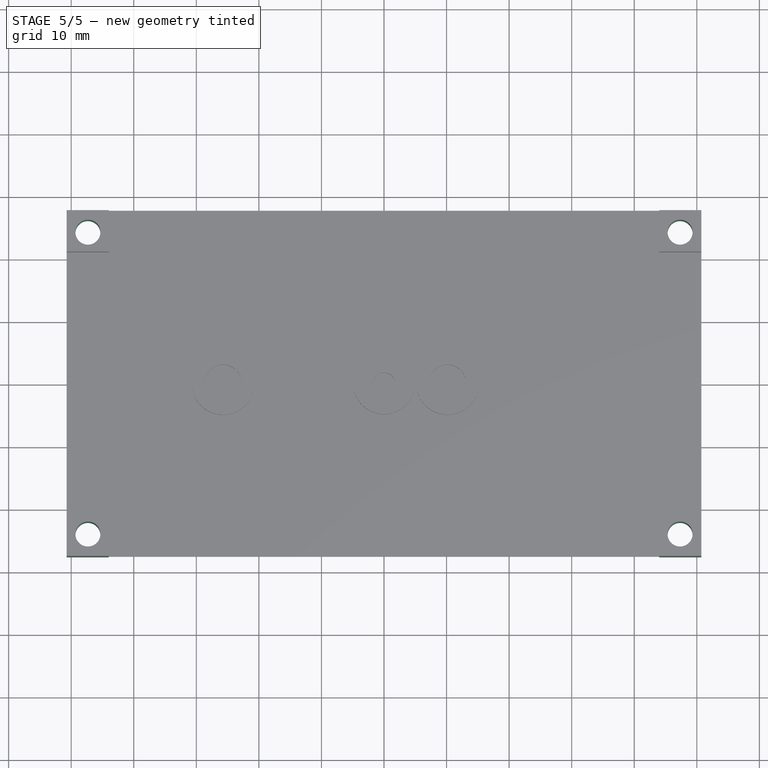
[diagram: stage 5 of 5 — top view after this stage's code; geometry added in this stage tinted green]
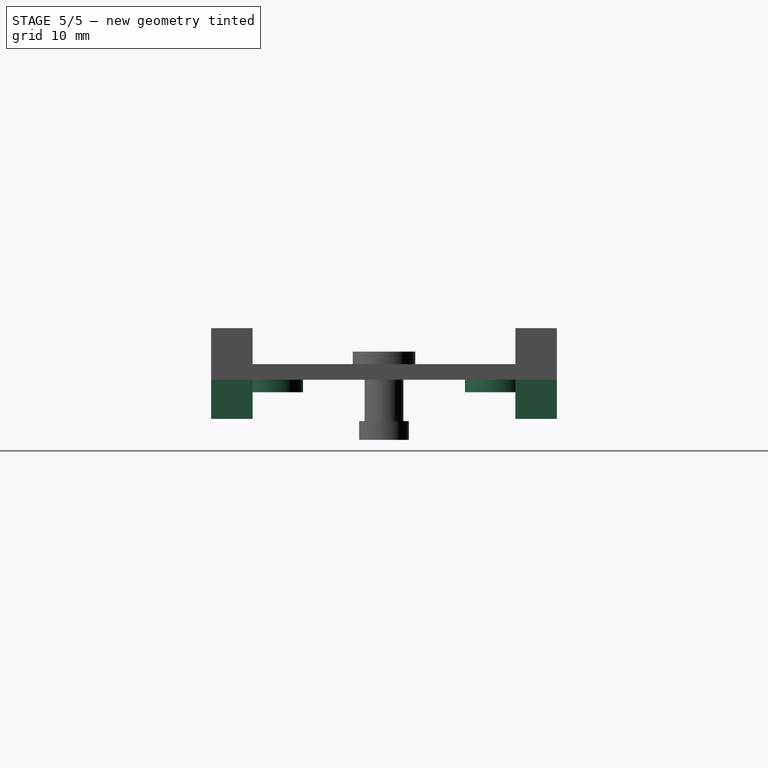
[diagram: stage 5 of 5 — right view after this stage's code; geometry added in this stage tinted green]
FEATURE [PartDesign::ShapeBinder] ShapeBinder
  Support = -> [Chamfer002]
  TraceSupport = false
FEATURE [Sketcher::SketchObject] Sketch005
  AttachmentSupport = -> [XY_Plane001]
  FullyConstrained = true
  MapMode = 5
  sketch-geometry (4):
    g0: LineSegment StartX=-50.725 StartY=27.625 StartZ=0 EndX=-50.725 EndY=-27.625 EndZ=0
    g1: LineSegment StartX=-50.725 StartY=-27.625 StartZ=0 EndX=50.725 EndY=-27.625 EndZ=0
    g2: LineSegment StartX=50.725 StartY=-27.625 StartZ=0 EndX=50.725 EndY=27.625 EndZ=0
    g3: LineSegment StartX=50.725 StartY=27.625 StartZ=0 EndX=-50.725 EndY=27.625 EndZ=0
  constraints (11):
    c: Coincident(g0,g1)
    c: Coincident(g1,g2)
    c: Coincident(g2,g3)
    c: Coincident(g3,g0)
    c: Vertical(g0)
    c: Vertical(g2)
    c: Horizontal(g1)
    c: Horizontal(g3)
    c: DistanceX(g1,g1) = 101.45
    c: DistanceY(g2,g2) = 55.25
    c: Symmetric(g0,g1,g-1)
FEATURE [PartDesign::Pad] Pad002
  Direction = (0,0,1)
  Length = 2.5
  Length2 = 10
  Profile = -> Sketch005
  ReferenceAxis = -> Sketch005 [N_Axis]
  Suppressed = false
  Type = 0
FEATURE [Sketcher::SketchObject] Sketch006
  AttachmentSupport = -> [Pad002]
  ExternalGeometry = -> [ShapeBinder,Pad002]
  FullyConstrained = true
  MapMode = 5
  Placement = pos=(0,0,0) rot=(1,0,0;3.14159rad)
  sketch-geometry (16):
    g0: LineSegment StartX=-44 StartY=21 StartZ=0 EndX=-44 EndY=27.625 EndZ=0
    g1: LineSegment StartX=-44 StartY=27.625 StartZ=0 EndX=-50.725 EndY=27.625 EndZ=0
    g2: LineSegment StartX=-50.725 StartY=27.625 StartZ=0 EndX=-50.725 EndY=21 EndZ=0
    g3: LineSegment StartX=-50.725 StartY=21 StartZ=0 EndX=-44 EndY=21 EndZ=0
    g4: LineSegment StartX=-44 StartY=-21 StartZ=0 EndX=-50.725 EndY=-21 EndZ=0
    g5: LineSegment StartX=-50.725 StartY=-21 StartZ=0 EndX=-50.725 EndY=-27.625 EndZ=0
    g6: LineSegment StartX=-50.725 StartY=-27.625 StartZ=0 EndX=-44 EndY=-27.625 EndZ=0
    g7: LineSegment StartX=-44 StartY=-27.625 StartZ=0 EndX=-44 EndY=-21 EndZ=0
    g8: LineSegment StartX=44 StartY=-21 StartZ=0 EndX=44 EndY=-27.625 EndZ=0
    g9: LineSegment StartX=44 StartY=-27.625 StartZ=0 EndX=50.725 EndY=-27.625 EndZ=0
    g10: LineSegment StartX=50.725 StartY=-27.625 StartZ=0 EndX=50.725 EndY=-21 EndZ=0
    g11: LineSegment StartX=50.725 StartY=-21 StartZ=0 EndX=44 EndY=-21 EndZ=0
    g12: LineSegment StartX=44 StartY=21 StartZ=0 EndX=50.725 EndY=21 EndZ=0
    g13: LineSegment StartX=50.725 StartY=21 StartZ=0 EndX=50.725 EndY=27.625 EndZ=0
    g14: LineSegment StartX=50.725 StartY=27.625 StartZ=0 EndX=44 EndY=27.625 EndZ=0
    g15: LineSegment StartX=44 StartY=27.625 StartZ=0 EndX=44 EndY=21 EndZ=0
  constraints (40):
    c: Coincident(g0,g1)
    c: Coincident(g1,g2)
    c: Coincident(g2,g3)
    c: Coincident(g3,g0)
    c: Vertical(g0)
    c: Vertical(g2)
    c: Horizontal(g1)
    c: Horizontal(g3)
    c: Coincident(g0,g-11)
    c: Coincident(g1,g-8)
    c: Coincident(g4,g5)
    c: Coincident(g5,g6)
    c: Coincident(g6,g7)
    c: Coincident(g7,g4)
    c: Horizontal(g4)
    c: Horizontal(g6)
    c: Vertical(g5)
    c: Vertical(g7)
    c: Coincident(g4,g-14)
    c: Coincident(g5,g-9)
    c: Coincident(g8,g9)
    c: Coincident(g9,g10)
    c: Coincident(g10,g11)
    c: Coincident(g11,g8)
    c: Vertical(g8)
    c: Vertical(g10)
    c: Horizontal(g9)
    c: Horizontal(g11)
    c: Coincident(g8,g-13)
    c: Coincident(g9,g-10)
    c: Coincident(g12,g13)
    c: Coincident(g13,g14)
    c: Coincident(g14,g15)
    c: Coincident(g15,g12)
    c: Horizontal(g12)
    c: Horizontal(g14)
    c: Vertical(g13)
    c: Vertical(g15)
    c: Coincident(g12,g-12)
    c: Coincident(g13,g-10)
FEATURE [PartDesign::Pad] Pad003
  BaseFeature = -> Pad002
  Direction = (0,0,-1)
  Length = 6.25
  Length2 = 10
  Profile = -> Sketch006
  ReferenceAxis = -> Sketch006 [N_Axis]
  Suppressed = false
  Type = 0
FEATURE [Sketcher::SketchObject] Sketch007
  ExternalGeometry = -> [ShapeBinder]
  FullyConstrained = true
  MapMode = 5
  Placement = pos=(0,0,-6.25) rot=(1,0,0;3.14159rad)
  sketch-geometry (4):
    g0: Circle CenterX=-47.325 CenterY=24.125 CenterZ=0 NormalX=0 NormalY=0 NormalZ=1 AngleXU=0 Radius=2
    g1: Circle CenterX=47.325 CenterY=24.125 CenterZ=0 NormalX=0 NormalY=0 NormalZ=1 AngleXU=0 Radius=2
    g2: Circle CenterX=47.325 CenterY=-24.125 CenterZ=0 NormalX=0 NormalY=0 NormalZ=1 AngleXU=0 Radius=2
    g3: Circle CenterX=-47.325 CenterY=-24.125 CenterZ=0 NormalX=0 NormalY=0 NormalZ=1 AngleXU=0 Radius=2
  constraints (8):
    c: Coincident(g0,g-3)
    c: Coincident(g1,g-4)
    c: Coincident(g2,g-5)
    c: Coincident(g3,g-6)
    c: Equal(g3,g0)
    c: Equal(g0,g1)
    c: Equal(g1,g2)
    c: Diameter(g0) = 4
FEATURE [PartDesign::Pocket] Pocket004
  BaseFeature = -> Pad003
  Direction = (0,0,1)
  Length = 5
  Length2 = 5
  Profile = -> Sketch007
  ReferenceAxis = -> Sketch007 [N_Axis]
  Suppressed = false
  Type = 1
FEATURE [Sketcher::SketchObject] Sketch008
  AttachmentSupport = -> [Pocket004]
  FullyConstrained = true
  MapMode = 5
  Placement = pos=(0,0,0) rot=(1,0,0;3.14159rad)
  sketch-geometry (4):
    g0: Circle CenterX=-22.1 CenterY=17.95 CenterZ=0 NormalX=0 NormalY=0 NormalZ=1 AngleXU=0 Radius=5
    g1: Circle CenterX=-22.1 CenterY=-17.95 CenterZ=0 NormalX=0 NormalY=0 NormalZ=1 AngleXU=0 Radius=5
    g2: Circle CenterX=-22.1 CenterY=17.95 CenterZ=0 NormalX=0 NormalY=0 NormalZ=1 AngleXU=0 Radius=3
    g3: Circle CenterX=-22.1 CenterY=-17.95 CenterZ=0 NormalX=0 NormalY=0 NormalZ=1 AngleXU=0 Radius=3
  constraints (9):
    c: Equal(g0,g1)
    c: Diameter(g0) = 10
    c: DistanceY(g1,g0) = 35.9
    c: Symmetric(g0,g1,g-1)
    c: Coincident(g2,g0)
    c: Coincident(g3,g1)
    c: Equal(g3,g2)
    c: Diameter(g2) = 6
    c: DistanceX(g1,g-1) = 22.1
FEATURE [PartDesign::Pad] Pad004
  BaseFeature = -> Pocket004
  Direction = (0,0,-1)
  Length = 2
  Length2 = 10
  Profile = -> Sketch008
  ReferenceAxis = -> Sketch008 [N_Axis]
  Suppressed = false
  Type = 0
FEATURE [Sketcher::SketchObject] Sketch009
  AttachmentSupport = -> [Pad004]
  ExternalGeometry = -> [Pad004]
  FullyConstrained = true
  MapMode = 5
  Placement = pos=(0,0,0) rot=(1,0,0;3.14159rad)
  sketch-geometry (2):
    g0: Circle CenterX=-22.1 CenterY=17.95 CenterZ=0 NormalX=0 NormalY=0 NormalZ=1 AngleXU=0 Radius=1.75
    g1: Circle CenterX=-22.1 CenterY=-17.95 CenterZ=0 NormalX=0 NormalY=0 NormalZ=1 AngleXU=0 Radius=1.75
  constraints (4):
    c: Coincident(g0,g-3)
    c: Coincident(g1,g-4)
    c: Equal(g1,g0)
    c: Diameter(g0) = 3.5
FEATURE [PartDesign::Pocket] Pocket005
  BaseFeature = -> Pad004
  Direction = (0,0,1)
  Length = 5
  Length2 = 5
  Profile = -> Sketch009
  ReferenceAxis = -> Sketch009 [N_Axis]
  Suppressed = false
  Type = 0
FEATURE [Sketcher::SketchObject] Sketch010
  AttachmentSupport = -> [Pocket005]
  ExternalGeometry = -> [Pocket005]
  FullyConstrained = true
  MapMode = 5
  Placement = pos=(0,0,2.5) rot=(0,0,1;0rad)
  sketch-geometry (4):
    g0: Circle CenterX=-47.325 CenterY=24.125 CenterZ=0 NormalX=0 NormalY=0 NormalZ=1 AngleXU=0 Radius=3
    g1: Circle CenterX=-47.325 CenterY=-24.125 CenterZ=0 NormalX=0 NormalY=0 NormalZ=1 AngleXU=0 Radius=3
    g2: Circle CenterX=47.325 CenterY=-24.125 CenterZ=0 NormalX=0 NormalY=0 NormalZ=1 AngleXU=0 Radius=3
    g3: Circle CenterX=47.325 CenterY=24.125 CenterZ=0 NormalX=0 NormalY=0 NormalZ=1 AngleXU=0 Radius=3
  constraints (8):
    c: Coincident(g0,g-3)
    c: Coincident(g1,g-6)
    c: Coincident(g2,g-5)
    c: Coincident(g3,g-4)
    c: Equal(g3,g2)
    c: Equal(g2,g1)
    c: Equal(g1,g0)
    c: Diameter(g0) = 6
FEATURE [PartDesign::Pocket] Pocket006
  BaseFeature = -> Pocket005
  Direction = (0,0,-1)
  Length = 2
  Length2 = 5
  Profile = -> Sketch010
  ReferenceAxis = -> Sketch010 [N_Axis]
  Suppressed = false
  Type = 0
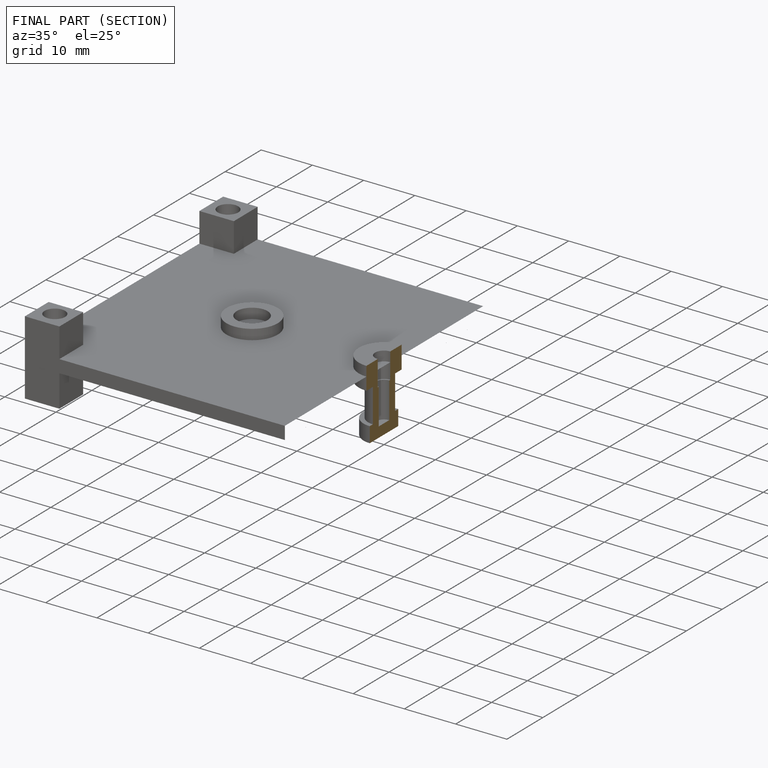
[diagram: finished part — half-section view (interior)]
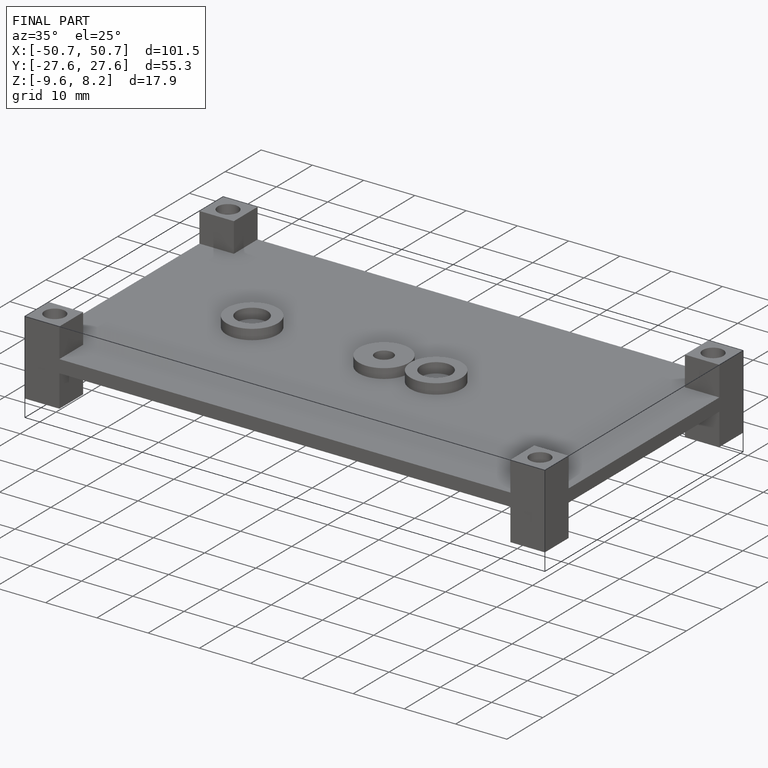
[diagram: finished part — iso view with bounding-box wireframe]
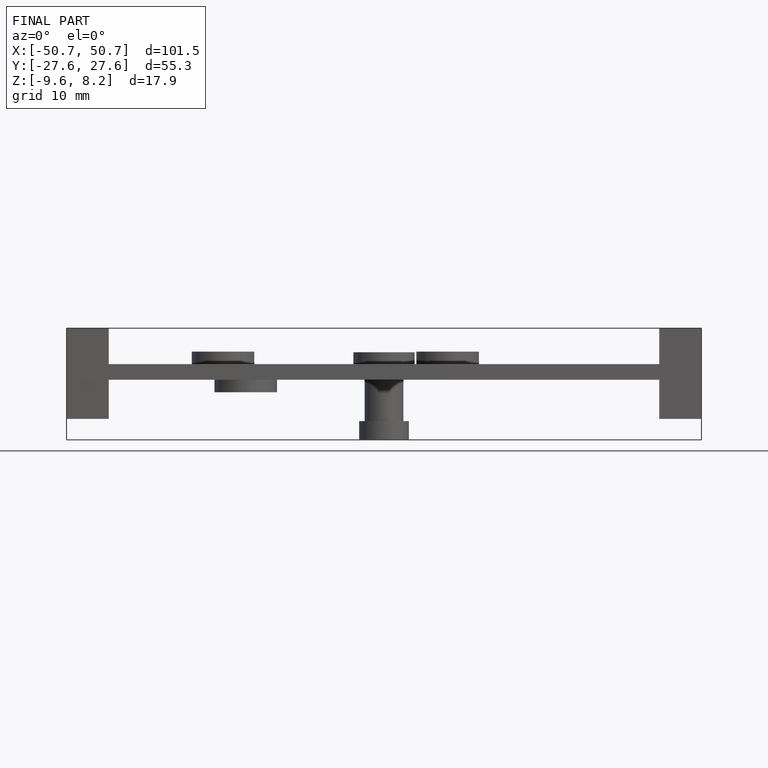
[diagram: finished part — front view with bounding-box wireframe]
